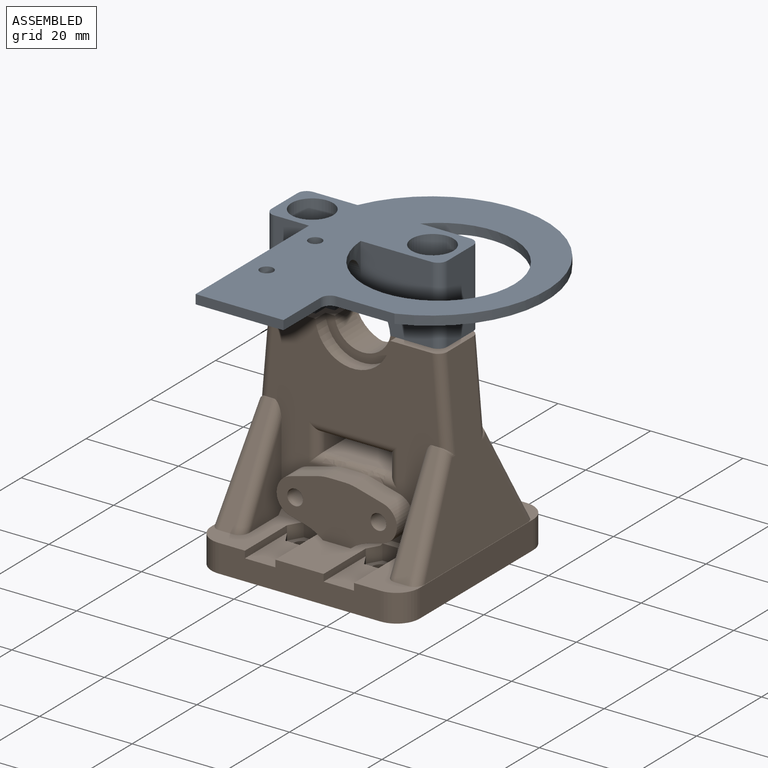
[diagram: assembled view]
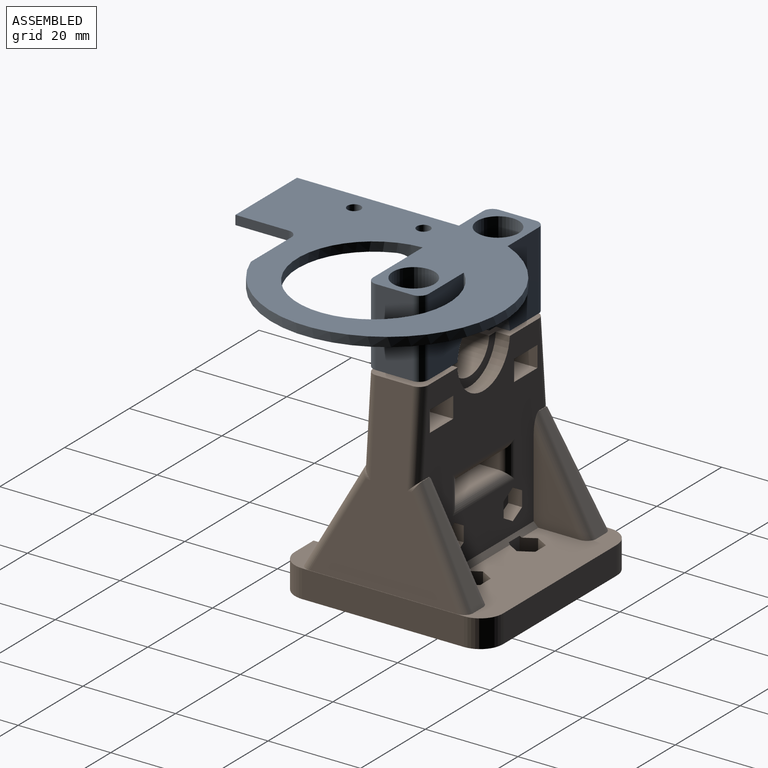
[diagram: assembled view, second angle]
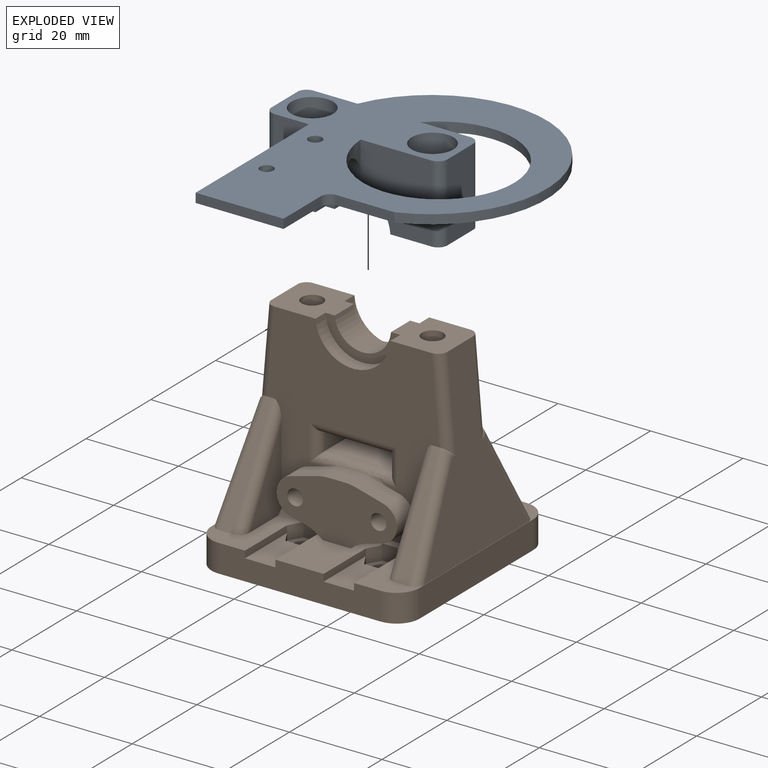
[diagram: exploded view]
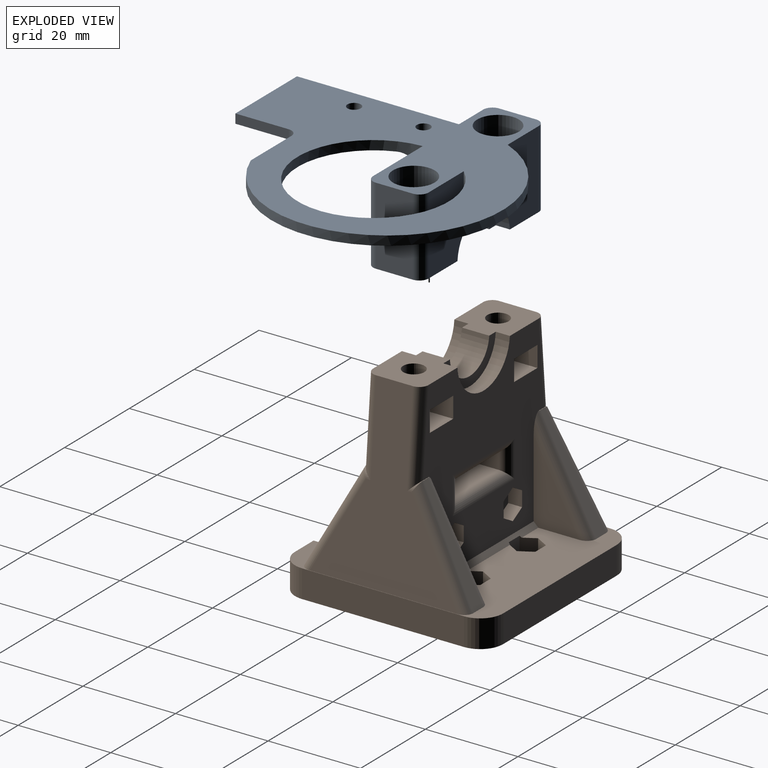
[diagram: exploded view, second angle]
ASSEMBLY  parts=2 mates=2
PART A: 34 faces, bbox 59.5x62x16.8 mm
  f0: plane 62x59.5mm, normal (0,0,-1), area 1639mm2, adj f1,f4,f5,f8,f15,f16,f17,f18
  f1: plane 34x16.8mm, normal (0,-1,0), area 381.4mm2, adj f0,f3,f9,f12,f15,f16,f27,f30
  f2: cylinder r=6.1mm len=12.16mm, axis (0,1,0), area 107.2mm2, adj f3,f9,f11,f13
  f3: plane 12.92x12mm, normal (0,0,1), area 125.9mm2, adj f1,f2,f5,f7,f8,f10,f11,f12
  f4: plane 16.8x8mm, normal (-1,0,0), area 134.4mm2, adj f0,f9,f30,f33
  f5: plane 16.8x8mm, normal (1,0,0), area 134.4mm2, adj f0,f3,f31,f32
  f6: cylinder r=2.2mm len=7.8mm, axis (0,0,-1), area 107.8mm2, adj f9,f26
  f7: cylinder r=2.2mm len=7.8mm, axis (0,0,-1), area 107.8mm2, adj f3,f25
  f8: plane 34x16.8mm, normal (0,1,0), area 398.1mm2, adj f0,f3,f9,f10,f16,f17,f28,f32
  f9: plane 12.92x12mm, normal (0,0,1), area 125.9mm2, adj f1,f2,f4,f6,f8,f10,f11,f12
  f10: cylinder r=8.1mm len=16.17mm, axis (0,1,0), area 74.6mm2, adj f3,f8,f9,f11
  f11: plane 16.17x7.6mm, normal (0,1,0), area 42.6mm2, adj f2,f3,f9,f10
  f12: cylinder r=8.1mm len=16.17mm, axis (0,-1,0), area 74.6mm2, adj f1,f3,f9,f13
  f13: plane 16.17x7.6mm, normal (0,-1,0), area 42.6mm2, adj f2,f3,f9,f12
  f14: plane 62x50mm, normal (0,0,1), area 1181.9mm2, adj f15,f16,f17,f18,f19,f20,f21,f22
  f15: cylinder r=25mm len=48.5mm, axis (0,0,-1), area 203.6mm2, adj f0,f1,f14,f18,f27
  f16: cylinder r=16.34mm len=32.69mm, axis (0,0,-1), area 192.9mm2, adj f0,f1,f8,f14,f27,f28
  f17: plane 35x7mm, normal (-1,0,0), area 75.4mm2, adj f0,f8,f14,f20,f28
  f18: plane 12.53x2mm, normal (0,1,0), area 25.1mm2, adj f0,f14,f15,f29
  f19: plane 11.5x2mm, normal (1,0,0), area 23mm2, adj f0,f14,f20,f29
  f20: plane 19x2mm, normal (0,1,0), area 38mm2, adj f0,f14,f17,f19
  f21: cylinder r=1.45mm len=2.9mm, axis (0,0,-1), area 18.2mm2, adj f0,f14
  f22: cylinder r=1.45mm len=2.9mm, axis (0,0,-1), area 19.3mm2, adj f0,f14,f28
  f23: cylinder r=4.5mm len=9mm, axis (0,0,-1), area 189.4mm2, adj f0,f25
  f24: cylinder r=4.5mm len=9mm, axis (0,0,-1), area 189.4mm2, adj f0,f26
  f25: cone r=2.2mm half-angle=45deg, axis (0,0,-1), area 68.5mm2, adj f7,f23
  f26: cone r=2.2mm half-angle=45deg, axis (0,0,-1), area 68.5mm2, adj f6,f24
  f27: cylinder r=5mm len=23.6mm, axis (1,0,0), area 118.5mm2, adj f1,f14,f15,f16
  f28: cylinder r=5mm len=12.2mm, axis (-1,0,0), area 84.9mm2, adj f8,f14,f16,f17,f22
  f29: cylinder r=2mm len=2mm, axis (0,0,1), area 6.3mm2, adj f0,f14,f18,f19
  f30: cylinder r=2mm len=16.8mm, axis (0,0,-1), area 52.8mm2, adj f0,f1,f4,f9
  f31: cylinder r=2mm len=16.8mm, axis (0,0,1), area 52.8mm2, adj f0,f1,f3,f5
  f32: cylinder r=2mm len=16.8mm, axis (0,0,-1), area 52.8mm2, adj f0,f3,f5,f8
  f33: cylinder r=2mm len=16.8mm, axis (0,0,1), area 52.8mm2, adj f0,f4,f8,f9
PART B: 163 faces, bbox 46.1x46.1x47.3 mm
  f0: plane 45.46x45.46mm, normal (0,0,1), area 656.6mm2, adj f16,f17,f18,f19,f25,f26,f27,f28
  f1: plane 15.5x13.31mm, normal (0,0,1), area 141.1mm2, adj f17,f41,f43,f79,f102,f107,f154,f157
  f2: plane 2.85x1.65mm, normal (0.87,0.5,0), area 4.9mm2, adj f3,f41,f42,f159
  f3: plane 3.29x1.5mm, normal (0,1,0), area 4.9mm2, adj f2,f4,f42,f159
  f4: plane 2.85x1.65mm, normal (-0.87,0.5,0), area 4.9mm2, adj f3,f39,f42,f159
  f5: plane 3.29x1.5mm, normal (0,1,0), area 4.9mm2, adj f6,f7,f46,f156
  f6: plane 2.85x1.65mm, normal (-0.87,0.5,0), area 4.9mm2, adj f5,f43,f46,f156
  f7: plane 2.85x1.65mm, normal (0.87,0.5,0), area 4.9mm2, adj f5,f45,f46,f156
  f8: plane 7.2x3.84mm, normal (0,0,-1), area 17.2mm2, adj f10,f56,f57,f153
  f9: plane 7.2x3.84mm, normal (0,0,-1), area 17.2mm2, adj f10,f63,f64,f152
  f10: plane 39x37.07mm, normal (0,1,0), area 922.5mm2, adj f8,f9,f15,f49,f50,f54,f56,f57
  f11: plane 39x37.07mm, normal (0,-1,0), area 813.6mm2, adj f15,f49,f52,f72,f73,f74,f76,f77
  f12: cylinder r=2.3mm len=4.6mm, axis (0,0,1), area 44.8mm2, adj f49,f152
  f13: cylinder r=2.3mm len=4.6mm, axis (0,0,1), area 44.8mm2, adj f15,f153
  f14: cylinder r=6.1mm len=12.16mm, axis (0,1,0), area 107.2mm2, adj f15,f49,f51,f53
  f15: plane 12.99x12.07mm, normal (0,0,1), area 124.5mm2, adj f10,f11,f13,f14,f48,f50,f51,f52
  f16: plane 35x6mm, normal (-1,0,0), area 210mm2, adj f0,f20,f134,f137
  f17: plane 35x6mm, normal (0,-1,0), area 190.3mm2, adj f0,f1,f20,f134,f135,f154,f155,f156
  f18: plane 35x6mm, normal (1,0,0), area 210mm2, adj f0,f20,f135,f136
  f19: plane 35x6mm, normal (0,1,0), area 210mm2, adj f0,f20,f136,f137
  f20: plane 45x45mm, normal (0,0,-1), area 1965.1mm2, adj f16,f17,f18,f19,f21,f22,f23,f24
  f21: cylinder r=1.75mm len=3.5mm, axis (0,0,1), area 33mm2, adj f20,f31
  f22: cylinder r=1.75mm len=3.5mm, axis (0,0,1), area 33mm2, adj f20,f38
  f23: cylinder r=1.75mm len=3.5mm, axis (0,0,1), area 33mm2, adj f20,f42
  f24: cylinder r=1.75mm len=3.5mm, axis (0,0,1), area 33mm2, adj f20,f46
  f25: plane 3.35x2.85mm, normal (-0.87,0.5,0), area 9.9mm2, adj f0,f26,f30,f31,f162
  f26: plane 3x2.85mm, normal (-0.87,-0.5,0), area 9.9mm2, adj f0,f25,f27,f31
  f27: plane 3.29x3mm, normal (0,-1,0), area 9.9mm2, adj f0,f26,f28,f31
  f28: plane 3x2.85mm, normal (0.87,-0.5,0), area 9.9mm2, adj f0,f27,f29,f31
  f29: plane 3.35x2.85mm, normal (0.87,0.5,0), area 9.9mm2, adj f0,f28,f30,f31,f162
  f30: plane 3.35x3.29mm, normal (0,1,0), area 11mm2, adj f25,f29,f31,f162
  f31: plane 6.58x5.7mm, normal (0,0,1), area 18.5mm2, adj f21,f25,f26,f27,f28,f29,f30
  f32: plane 3.29x3mm, normal (0,-1,0), area 9.9mm2, adj f0,f33,f37,f38
  f33: plane 3x2.85mm, normal (0.87,-0.5,0), area 9.9mm2, adj f0,f32,f34,f38
  f34: plane 3.35x2.85mm, normal (0.87,0.5,0), area 9.9mm2, adj f0,f33,f35,f38,f162
  f35: plane 3.35x3.29mm, normal (0,1,0), area 11mm2, adj f34,f36,f38,f162
  f36: plane 3.35x2.85mm, normal (-0.87,0.5,0), area 9.9mm2, adj f0,f35,f37,f38,f162
  f37: plane 3x2.85mm, normal (-0.87,-0.5,0), area 9.9mm2, adj f0,f32,f36,f38
  f38: plane 6.58x5.7mm, normal (0,0,1), area 18.5mm2, adj f22,f32,f33,f34,f35,f36,f37
  f39: plane 3.35x2.85mm, normal (-0.87,-0.5,0), area 9.9mm2, adj f0,f4,f40,f42,f158,f160
  f40: plane 3.35x3.29mm, normal (0,-1,0), area 11mm2, adj f39,f41,f42,f160
  f41: plane 3.35x2.85mm, normal (0.87,-0.5,0), area 9.9mm2, adj f1,f2,f40,f42,f157,f160
  f42: plane 6.58x5.7mm, normal (0,0,1), area 18.5mm2, adj f2,f3,f4,f23,f39,f40,f41
  f43: plane 3.35x2.85mm, normal (-0.87,-0.5,0), area 9.9mm2, adj f1,f6,f44,f46,f154,f161
  f44: plane 3.35x3.29mm, normal (0,-1,0), area 11mm2, adj f43,f45,f46,f161
  f45: plane 3.35x2.85mm, normal (0.87,-0.5,0), area 9.9mm2, adj f0,f7,f44,f46,f155,f161
  f46: plane 6.58x5.7mm, normal (0,0,1), area 18.5mm2, adj f5,f6,f7,f24,f43,f44,f45
  f47: plane 40x31.82mm, normal (-1,0,0.09), area 580.8mm2, adj f0,f49,f118,f119,f120,f130,f131,f132
  f48: plane 40x31.82mm, normal (1,0,0.09), area 580.8mm2, adj f0,f15,f122,f123,f124,f126,f127,f128
  f49: plane 12.99x12.07mm, normal (0,0,1), area 124.5mm2, adj f10,f11,f12,f14,f47,f50,f51,f52
  f50: cylinder r=8.1mm len=16.17mm, axis (0,1,0), area 74.6mm2, adj f10,f15,f49,f51
  f51: plane 16.17x7.6mm, normal (0,1,0), area 42.6mm2, adj f14,f15,f49,f50
  f52: cylinder r=8.1mm len=16.17mm, axis (0,-1,0), area 74.6mm2, adj f11,f15,f49,f53
  f53: plane 16.17x7.6mm, normal (0,-1,0), area 42.6mm2, adj f14,f15,f49,f52
  f54: plane 10.3x7.2mm, normal (0,0,1), area 48.5mm2, adj f10,f56,f57,f58,f60,f70,f71
  f55: plane 1.54x0.17mm, normal (0,0,-1), area 0.2mm2, adj f58,f70,f71,f153
  f56: plane 8.41x6.21mm, normal (-1,0,0), area 34.4mm2, adj f8,f10,f54,f71,f153
  f57: plane 7.74x5.54mm, normal (1,0,0), area 34.4mm2, adj f8,f10,f54,f70,f153
  f58: plane 4.5x1.2mm, normal (0,1,0), area 5.4mm2, adj f54,f55,f70,f71
  f59: plane 4.6x4.6mm, normal (0,0,1), area 16.6mm2, adj f60
  f60: cylinder r=2.3mm len=5.5mm, axis (0,0,1), area 79.5mm2, adj f54,f59
  f61: plane 10.3x7.2mm, normal (0,0,1), area 48.5mm2, adj f10,f63,f64,f65,f67,f68,f69
  f62: plane 1.54x0.17mm, normal (0,0,-1), area 0.2mm2, adj f65,f68,f69,f152
  f63: plane 8.41x6.21mm, normal (-1,0,0), area 34.4mm2, adj f9,f10,f61,f69,f152
  f64: plane 7.74x5.54mm, normal (1,0,0), area 34.4mm2, adj f9,f10,f61,f68,f152
  f65: plane 4.5x1.2mm, normal (0,1,0), area 5.4mm2, adj f61,f62,f68,f69
  f66: plane 4.6x4.6mm, normal (0,0,1), area 16.6mm2, adj f67
  f67: cylinder r=2.3mm len=5.5mm, axis (0,0,1), area 79.5mm2, adj f61,f66
  f68: plane 5.24x3mm, normal (0.71,0.71,0), area 21.2mm2, adj f61,f62,f64,f65,f152
  f69: plane 5.24x3mm, normal (-0.71,0.71,0), area 21.2mm2, adj f61,f62,f63,f65,f152
  f70: plane 5.24x3mm, normal (0.71,0.71,0), area 21.2mm2, adj f54,f55,f57,f58,f153
  f71: plane 5.24x3mm, normal (-0.71,0.71,0), area 21.2mm2, adj f54,f55,f56,f58,f153
  f72: plane 5x3.08mm, normal (0.26,0,-0.97), area 15.9mm2, adj f11,f79,f102,f103
  f73: cylinder r=4mm len=7.74mm, axis (0,1,0), area 52.6mm2, adj f11,f74,f79,f103
  f74: plane 5.78x5.06mm, normal (0.26,0,0.97), area 29.6mm2, adj f11,f73,f79,f104,f142
  f75: plane 5x3.34mm, normal (0,0,1), area 16.7mm2, adj f79,f104,f105,f146
  f76: plane 5.78x5.06mm, normal (-0.26,0,0.97), area 29.6mm2, adj f11,f77,f79,f105,f150
  f77: cylinder r=4mm len=7.74mm, axis (0,1,0), area 52.6mm2, adj f11,f76,f79,f106
  f78: plane 5x3.08mm, normal (-0.26,0,-0.97), area 15.9mm2, adj f11,f79,f106,f107
  f79: plane 26x12.53mm, normal (0,-1,0), area 228.7mm2, adj f1,f72,f73,f74,f75,f76,f77,f78
  f80: cylinder r=1.7mm len=14mm, axis (0,-1,0), area 149.5mm2, adj f79,f95
  f81: cylinder r=1.7mm len=14mm, axis (0,-1,0), area 149.5mm2, adj f79,f88
  f82: plane 3.29x3mm, normal (1,0,0), area 9.9mm2, adj f10,f83,f87,f88
  f83: plane 3x2.85mm, normal (0.5,0,-0.87), area 9.9mm2, adj f10,f82,f84,f88
  f84: plane 3x2.85mm, normal (-0.5,0,-0.87), area 9.9mm2, adj f10,f83,f85,f88
  f85: plane 3.29x3mm, normal (-1,0,0), area 9.9mm2, adj f10,f84,f86,f88
  f86: plane 3x2.85mm, normal (-0.5,0,0.87), area 9.9mm2, adj f10,f85,f87,f88
  f87: plane 3x2.85mm, normal (0.5,0,0.87), area 9.9mm2, adj f10,f82,f86,f88
  f88: plane 6.58x5.7mm, normal (0,1,0), area 19.1mm2, adj f81,f82,f83,f84,f85,f86,f87
  f89: plane 3x2.85mm, normal (0.5,0,0.87), area 9.9mm2, adj f10,f90,f94,f95
  f90: plane 3.29x3mm, normal (1,0,0), area 9.9mm2, adj f10,f89,f91,f95
  f91: plane 3x2.85mm, normal (0.5,0,-0.87), area 9.9mm2, adj f10,f90,f92,f95
  f92: plane 3x2.85mm, normal (-0.5,0,-0.87), area 9.9mm2, adj f10,f91,f93,f95
  f93: plane 3.29x3mm, normal (-1,0,0), area 9.9mm2, adj f10,f92,f94,f95
  f94: plane 3x2.85mm, normal (-0.5,0,0.87), area 9.9mm2, adj f10,f89,f93,f95
  f95: plane 6.58x5.7mm, normal (0,1,0), area 19.1mm2, adj f80,f89,f90,f91,f92,f93,f94
  f96: plane 18.01x9.82mm, normal (1,0,0), area 87.9mm2, adj f0,f11,f133,f161
  f97: plane 1.89x0.13mm, normal (0,0,1), area 0.2mm2, adj f11,f98,f130,f131,f132,f133
  f98: plane 22x11.99mm, normal (0,-0.88,0.48), area 53.4mm2, adj f0,f97,f130,f133
  f99: plane 1.89x0.13mm, normal (0,0,1), area 0.2mm2, adj f11,f101,f126,f127,f128,f129
  f100: plane 18.01x9.82mm, normal (-1,0,0), area 87.9mm2, adj f0,f11,f129,f160
  f101: plane 22x11.99mm, normal (0,-0.88,0.48), area 53.4mm2, adj f0,f99,f126,f129
  f102: cylinder r=10mm len=5mm, axis (0,1,0), area 21.3mm2, adj f1,f11,f72,f79,f160
  f103: cylinder r=10mm len=5mm, axis (0,1,0), area 0.3mm2, adj f11,f72,f73,f79
  f104: cylinder r=10mm len=5mm, axis (0,1,0), area 13.2mm2, adj f74,f75,f79,f144
  f105: cylinder r=10mm len=5mm, axis (0,1,0), area 13.2mm2, adj f75,f76,f79,f148
  f106: cylinder r=10mm len=5mm, axis (0,1,0), area 0.3mm2, adj f11,f77,f78,f79
  f107: cylinder r=10mm len=5mm, axis (0,-1,0), area 21.3mm2, adj f1,f11,f78,f79,f161
  f108: plane 15x8mm, normal (0,0,-1), area 120mm2, adj f109,f111,f141,f147
  f109: plane 8x4mm, normal (1,0,0), area 32mm2, adj f108,f110,f140,f149
  f110: plane 15x8.27mm, normal (0,0,1), area 122.1mm2, adj f109,f111,f138,f142,f143,f144,f146,f148
  f111: plane 8x4mm, normal (-1,0,0), area 32mm2, adj f108,f110,f139,f145
  f112: plane 18.01x9.82mm, normal (-1,0,0), area 87.9mm2, adj f0,f10,f125,f162
  f113: plane 1.89x0.13mm, normal (0,0,1), area 0.2mm2, adj f10,f114,f122,f123,f124,f125
  f114: plane 22x11.99mm, normal (0,0.88,0.48), area 53.4mm2, adj f0,f113,f122,f125
  f115: plane 18.01x9.82mm, normal (1,0,0), area 87.9mm2, adj f0,f10,f121,f162
  f116: plane 1.89x0.13mm, normal (0,0,1), area 0.2mm2, adj f10,f117,f118,f119,f120,f121
  f117: plane 22x11.99mm, normal (0,0.88,0.48), area 53.4mm2, adj f0,f116,f118,f121
  f118: cylinder r=2mm len=22.81mm, axis (-0.08,0.48,-0.88), area 74.7mm2, adj f0,f47,f116,f117,f120
  f119: cylinder r=2mm len=20.17mm, axis (-0.09,0,-1), area 58.8mm2, adj f10,f47,f49,f116,f120
  f120: cylinder r=2mm len=2.1mm, axis (0,-1,0), area 1.2mm2, adj f47,f116,f118,f119
  f121: cylinder r=2mm len=23mm, axis (0,-0.48,0.88), area 73.4mm2, adj f0,f10,f115,f116,f117
  f122: cylinder r=2mm len=22.81mm, axis (0.08,0.48,-0.88), area 74.7mm2, adj f0,f48,f113,f114,f124
  f123: cylinder r=2mm len=20.17mm, axis (0.09,0,-1), area 58.8mm2, adj f10,f15,f48,f113,f124
  f124: cylinder r=2mm len=2.1mm, axis (0,1,0), area 1.2mm2, adj f48,f113,f122,f123
  f125: cylinder r=2mm len=23mm, axis (0,0.48,-0.88), area 73.4mm2, adj f0,f10,f112,f113,f114
  f126: cylinder r=2mm len=22.81mm, axis (0.08,-0.48,-0.88), area 74.7mm2, adj f0,f48,f99,f101,f128
  f127: cylinder r=2mm len=20.17mm, axis (-0.09,0,1), area 58.8mm2, adj f11,f15,f48,f99,f128
  f128: cylinder r=2mm len=2.1mm, axis (0,1,0), area 1.2mm2, adj f48,f99,f126,f127
  f129: cylinder r=2mm len=23mm, axis (0,0.48,0.88), area 73.4mm2, adj f0,f11,f99,f100,f101
  f130: cylinder r=2mm len=22.81mm, axis (-0.08,-0.48,-0.88), area 74.7mm2, adj f0,f47,f97,f98,f132
  f131: cylinder r=2mm len=20.17mm, axis (0.09,0,1), area 58.8mm2, adj f11,f47,f49,f97,f132
  f132: cylinder r=2mm len=2.1mm, axis (0,-1,0), area 1.2mm2, adj f47,f97,f130,f131
  f133: cylinder r=2mm len=23mm, axis (0,-0.48,-0.88), area 73.4mm2, adj f0,f11,f96,f97,f98
  f134: cylinder r=5mm len=6mm, axis (0,0,-1), area 47.1mm2, adj f0,f16,f17,f20
  f135: cylinder r=5mm len=6mm, axis (0,0,1), area 47.1mm2, adj f0,f17,f18,f20
  f136: cylinder r=5mm len=6mm, axis (0,0,-1), area 47.1mm2, adj f0,f18,f19,f20
  f137: cylinder r=5mm len=6mm, axis (0,0,1), area 47.1mm2, adj f0,f16,f19,f20
  f138: cylinder r=2mm len=19mm, axis (1,0,0), area 53.4mm2, adj f10,f110,f139,f140
  f139: cylinder r=2mm len=8mm, axis (0,0,1), area 18.8mm2, adj f10,f111,f138,f141
  f140: cylinder r=2mm len=8mm, axis (0,0,-1), area 18.8mm2, adj f10,f109,f138,f141
  f141: cylinder r=2mm len=19mm, axis (-1,0,0), area 53.4mm2, adj f10,f108,f139,f140
  f142: bspline ~2.59x2mm, area 7mm2, adj f74,f110,f143,f144
  f143: cylinder r=2mm len=2.8mm, axis (1,0,0), area 4.8mm2, adj f11,f110,f142,f145
  f144: bspline ~4.34x1.97mm, area 5.6mm2, adj f104,f110,f142,f146
  f145: cylinder r=2mm len=8mm, axis (0,0,1), area 18.8mm2, adj f11,f111,f143,f147
  f146: cylinder r=2mm len=3.34mm, axis (1,0,0), area 7mm2, adj f75,f110,f144,f148
  f147: cylinder r=2mm len=19mm, axis (-1,0,0), area 53.4mm2, adj f11,f108,f145,f149
  f148: bspline ~3.71x1.96mm, area 5.6mm2, adj f105,f110,f146,f150
  f149: cylinder r=2mm len=8mm, axis (0,0,-1), area 18.8mm2, adj f11,f109,f147,f151
  f150: bspline ~2.59x2mm, area 7mm2, adj f76,f110,f148,f151
  f151: cylinder r=2mm len=2.8mm, axis (1,0,0), area 4.8mm2, adj f11,f110,f149,f150
  f152: cone r=4.2mm half-angle=45deg, axis (0,0,-1), area 45.7mm2, adj f9,f12,f62,f63,f64,f68,f69
  f153: cone r=4.2mm half-angle=45deg, axis (0,0,-1), area 45.7mm2, adj f8,f13,f55,f56,f57,f70,f71
  f154: plane 13x1.5mm, normal (-1,0,0), area 19.5mm2, adj f1,f17,f43,f156
  f155: plane 13x1.5mm, normal (1,0,0), area 19.5mm2, adj f0,f17,f45,f156
  f156: plane 13x6.58mm, normal (0,0,1), area 71.5mm2, adj f5,f6,f7,f17,f154,f155
  f157: plane 13x1.5mm, normal (1,0,0), area 19.5mm2, adj f1,f17,f41,f159
  f158: plane 13x1.5mm, normal (-1,0,0), area 19.5mm2, adj f0,f17,f39,f159
  f159: plane 13x6.58mm, normal (0,0,1), area 71.5mm2, adj f2,f3,f4,f17,f157,f158
  f160: plane 12.49x1.06mm, normal (0,-0.71,0.71), area 14.9mm2, adj f0,f1,f11,f39,f40,f41,f100,f102
  f161: plane 12.49x1.06mm, normal (0,-0.71,0.71), area 14.9mm2, adj f0,f1,f11,f43,f44,f45,f96,f107
  f162: plane 30.86x1mm, normal (0,0.71,0.71), area 40.2mm2, adj f0,f10,f25,f29,f30,f34,f35,f36
PLACE A rot(axis=(1,0,0),180deg) t=(-2.08,17.14,67.93)mm
PLACE B t=(-2.08,17.14,4.13)mm
MATE cylindrical A.f7 <-> B.f13  axis (0,0,-1) through (10.92,17.14,51.13)mm
MATE cylindrical A.f6 <-> B.f12  axis (0,0,-1) through (-15.08,17.14,51.13)mm
